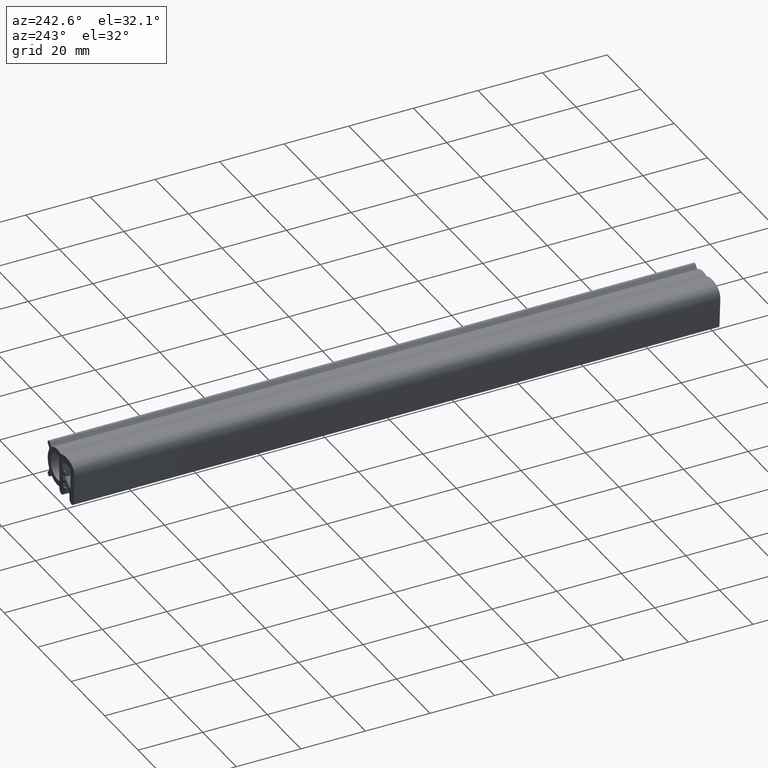
[diagram: clean part render]
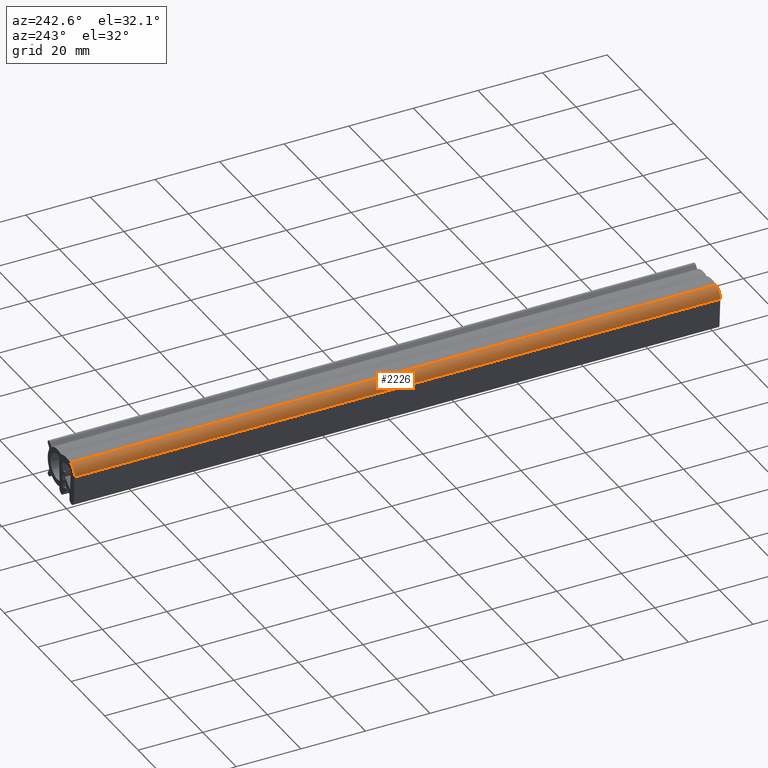
[diagram: same view with one face highlighted and labeled with its STEP entity id]
A machine part, auxiliary view. The second image highlights one B-rep face of the part: STEP entity #2226.
In plain terms, the highlighted face is a freeform B-spline surface patch.
Its self-contained STEP definition (entity closure, byte-faithful):
#569=CARTESIAN_POINT('',(-2.315043101189015,0.0,-0.294383022949744));
#570=VERTEX_POINT('',#569);
#584=CARTESIAN_POINT('',(-4.746288446912370,0.0,-3.627548625368050));
#585=VERTEX_POINT('',#584);
#586=CARTESIAN_POINT('',(-2.315043101189016,0.0,-0.294383022949742));
#587=CARTESIAN_POINT('',(-4.899554913657558,0.0,-0.962483976432578));
#588=CARTESIAN_POINT('',(-4.746288446912370,0.0,-3.627548625368050));
#596=(BOUNDED_CURVE()B_SPLINE_CURVE(2,(#586,#587,#588),.UNSPECIFIED.,.F.,.U.)CURVE()GEOMETRIC_REPRESENTATION_ITEM()QUASI_UNIFORM_CURVE()RATIONAL_B_SPLINE_CURVE((1.0,0.772746628802422,1.0))REPRESENTATION_ITEM(''));
#597=EDGE_CURVE('',#570,#585,#596,.T.);
#741=CARTESIAN_POINT('',(-4.746288446912370,200.0,-3.627548625368050));
#742=VERTEX_POINT('',#741);
#748=CARTESIAN_POINT('',(-2.315043101189015,200.0,-0.294383022949744));
#749=VERTEX_POINT('',#748);
#750=CARTESIAN_POINT('',(-2.315043101189016,200.0,-0.294383022949742));
#751=CARTESIAN_POINT('',(-4.899554913657558,200.000000000000090,-0.962483976432578));
#752=CARTESIAN_POINT('',(-4.746288446912093,200.0,-3.627548625368034));
#760=(BOUNDED_CURVE()B_SPLINE_CURVE(2,(#750,#751,#752),.UNSPECIFIED.,.F.,.U.)CURVE()GEOMETRIC_REPRESENTATION_ITEM()QUASI_UNIFORM_CURVE()RATIONAL_B_SPLINE_CURVE((1.0,0.772746628802422,1.0))REPRESENTATION_ITEM(''));
#761=EDGE_CURVE('',#749,#742,#760,.T.);
#2194=CARTESIAN_POINT('',(-2.315043101189015,200.0,-0.294383022949744));
#2195=CARTESIAN_POINT('',(-2.315043101189015,0.0,-0.294383022949744));
#2196=QUASI_UNIFORM_CURVE('',1,(#2194,#2195),.UNSPECIFIED.,.F.,.U.);
#2197=EDGE_CURVE('',#749,#570,#2196,.T.);
#2202=CARTESIAN_POINT('',(-4.735061002104552,205.0,-3.768900185551656));
#2203=CARTESIAN_POINT('',(-4.735061002104552,-5.125000000000000,-3.768900185551656));
#2204=CARTESIAN_POINT('',(-5.030347640019567,205.000000000000030,-0.857523463444527));
#2205=CARTESIAN_POINT('',(-5.030347640019567,-5.125000000000001,-0.857523463444527));
#2206=CARTESIAN_POINT('',(-2.165785602703243,205.0,-0.259532701873285));
#2207=CARTESIAN_POINT('',(-2.165785602703243,-5.125000000000000,-0.259532701873285));
#2215=(BOUNDED_SURFACE()B_SPLINE_SURFACE(1,2,((#2202,#2204,#2206),(#2203,#2205,#2207)),.UNSPECIFIED.,.F.,.F.,.U.)B_SPLINE_SURFACE_WITH_KNOTS((2,2),(3,3),(0.0,210.125000000000000),(0.0,4.990232455460009),.UNSPECIFIED.)GEOMETRIC_REPRESENTATION_ITEM()RATIONAL_B_SPLINE_SURFACE(((1.0,0.743144825477394,1.0),(1.0,0.743144825477394,1.0)))REPRESENTATION_ITEM('')SURFACE());
#2216=ORIENTED_EDGE('',*,*,#597,.F.);
#2217=ORIENTED_EDGE('',*,*,#2197,.F.);
#2218=ORIENTED_EDGE('',*,*,#761,.T.);
#2219=CARTESIAN_POINT('',(-4.746288446912370,200.0,-3.627548625368050));
#2220=CARTESIAN_POINT('',(-4.746288446912370,0.0,-3.627548625368050));
#2221=QUASI_UNIFORM_CURVE('',1,(#2219,#2220),.UNSPECIFIED.,.F.,.U.);
#2222=EDGE_CURVE('',#742,#585,#2221,.T.);
#2223=ORIENTED_EDGE('',*,*,#2222,.T.);
#2224=EDGE_LOOP('',(#2216,#2217,#2218,#2223));
#2225=FACE_OUTER_BOUND('',#2224,.T.);
#2226=ADVANCED_FACE('',(#2225),#2215,.T.);